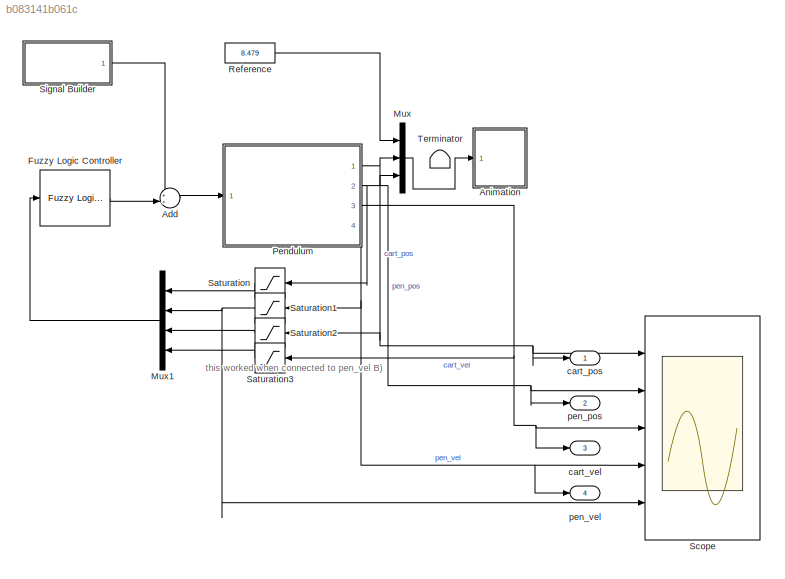
MODEL slx_b083141b061c
KIND model
CONFIG AbsTol = auto
CONFIG EnableMultiTasking = off
CONFIG FixedStep = auto
CONFIG MaxStep = auto
CONFIG MinStep = auto
CONFIG RelTol = 1e-3
CONFIG SampleTimeConstraint = Unconstrained
CONFIG SolverName = VariableStepAuto
CONFIG StartTime = 0.0
CONFIG StopTime = 20.0
BLOCK [Sum] Add
  Inputs = ++|
  Ports = [2, 1]
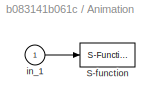
BLOCK [SubSystem] Animation
  Ports = [1]
  RequestExecContextInheritance = off
BLOCK [S-Function] Animation/S-function
  DeleteFcn = pendan([],[],[],'DeleteBlock');
  EnableBusSupport = off
  FunctionName = pendan
  Parameters = RefBlock
  Ports = [1]
  SFcnIsStateOwnerBlock = off
  SFunctionDeploymentMode = off
BLOCK [Inport] Animation/in_1
BLOCK [Reference] Fuzzy Logic Controller  REF=fuzblock/Fuzzy Logic   (lib defined in mdl_858b3b3e7478)
Controller
  Ports = [1, 1]
  SourceBlock = fuzblock/Fuzzy Logic \nController
  SourceProductBaseCode = FL
  SourceType = Fuzzy Inference System
BLOCK [Mux] Mux
  DisplayOption = bar
  Inputs = 3
  Ports = [3, 1]
BLOCK [Mux] Mux1
  DisplayOption = bar
  Ports = [4, 1]
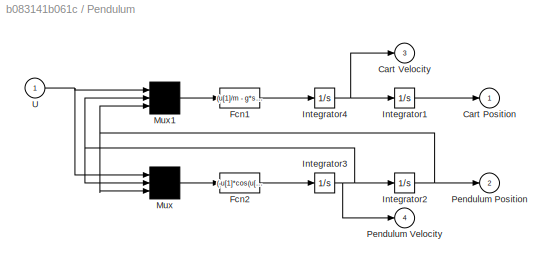
BLOCK [SubSystem] Pendulum
  Ports = [1, 4]
  RequestExecContextInheritance = off
BLOCK [Outport] Pendulum/Cart Position
  InitialOutput = 0
  VectorParamsAs1DForOutWhenUnconnected = off
BLOCK [Outport] Pendulum/Cart Velocity
  InitialOutput = 0
  Port = 3
  VectorParamsAs1DForOutWhenUnconnected = off
BLOCK [Fcn] Pendulum/Fcn1
  Expr = (u[1]/m - g*sin(u[3])*cos(u[3]) + l*power(u[2],2)*sin(u[3]))/(Mcart/m + power(sin(u[3]),2))
BLOCK [Fcn] Pendulum/Fcn2
  Expr = (-u[1]*cos(u[3])/m + (Mcart+m)*g*sin(u[3])/m - l*power(u[2],2)*sin(u[3])*cos(u[3]))/(l*(Mcart/m + power(sin(u[3]),2)))
BLOCK [Integrator] Pendulum/Integrator1
  Ports = [1, 1]
BLOCK [Integrator] Pendulum/Integrator2
  Ports = [1, 1]
BLOCK [Integrator] Pendulum/Integrator3
  Ports = [1, 1]
BLOCK [Integrator] Pendulum/Integrator4
  Ports = [1, 1]
BLOCK [Mux] Pendulum/Mux
  Inputs = 3
  Ports = [3, 1]
BLOCK [Mux] Pendulum/Mux1
  Inputs = 3
  Ports = [3, 1]
BLOCK [Outport] Pendulum/Pendulum Position
  InitialOutput = 0
  Port = 2
  VectorParamsAs1DForOutWhenUnconnected = off
BLOCK [Outport] Pendulum/Pendulum Velocity
  InitialOutput = 0
  Port = 4
  VectorParamsAs1DForOutWhenUnconnected = off
BLOCK [Inport] Pendulum/U
BLOCK [Constant] Reference
  Value = 8.479
BLOCK [Saturate] Saturation
  LowerLimit = -pi
  UpperLimit = pi
BLOCK [Saturate] Saturation1
  LowerLimit = -5
  UpperLimit = 5
BLOCK [Saturate] Saturation2
  LowerLimit = -10
  UpperLimit = 10
BLOCK [Saturate] Saturation3
  LowerLimit = -5
  UpperLimit = 5
BLOCK [Scope] Scope
  Floating = off
  NumInputPorts = 5
  Ports = [5]
  ScopeSpecificationString = Simulink.scopes.TimeScopeBlockCfg('CurrentConfiguration', extmgr.ConfigurationSet(extmgr.Configuration('Core','General UI',true),extmgr.Configuration('Core','Source UI',true),extmgr.Configuration('Sources','WiredSimulink',true,'DataLogging',true),extmgr.Configuration('Visuals','Time Domain',true,'SerializedDisplays',{struct('MinYLimReal','-3.83542','MaxYLimReal','5.40616','YLabelReal','','MinYLimM...<+3406ch>
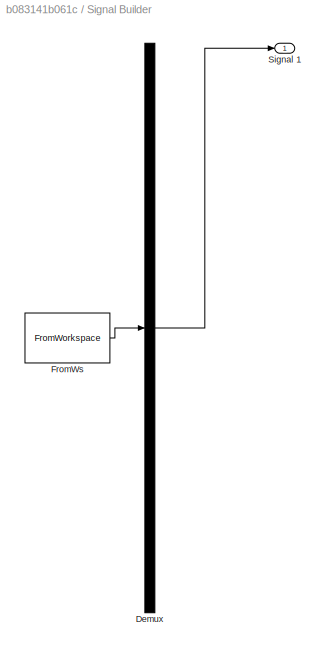
BLOCK [SubSystem] Signal Builder
  ClipboardFcn = sigbuilder_block('clipboard');
  CloseFcn = sigbuilder_block('close');
  ContinueFcn = sigbuilder_block('continue');
  CopyFcn = sigbuilder_block('copy');
  DeleteFcn = sigbuilder_block('delete');
  LoadFcn = sigbuilder_block('load');
  MaskHideContents = on
  ModelCloseFcn = sigbuilder_block('modelClose');
  NameChangeFcn = sigbuilder_block('namechange');
  OpenFcn = sigbuilder_block('open',[352.5 85 550.5 362.5 ]);
  PauseFcn = sigbuilder_block('pause');
  Ports = [0, 1]
  PreSaveFcn = sigbuilder_block('preSave');
  RequestExecContextInheritance = off
  StartFcn = sigbuilder_block('start');
  StopFcn = sigbuilder_block('stop');
  Tag = STV Subsys
BLOCK [Demux] Signal Builder/Demux
  DisplayOption = none
  Outputs = 1
  Ports = [1, 1]
  Tag = STV Demux
BLOCK [FromWorkspace] Signal Builder/FromWs
  Tag = STV FromWs
  VariableName = tuvar
BLOCK [Outport] Signal Builder/Signal 1
  Tag = STV Outport
BLOCK [Terminator] Terminator
BLOCK [Outport] cart_pos
  OutDataTypeStr = double
BLOCK [Outport] cart_vel
  OutDataTypeStr = double
  Port = 3
BLOCK [Outport] pen_pos
  OutDataTypeStr = double
  Port = 2
BLOCK [Outport] pen_vel
  OutDataTypeStr = double
  Port = 4
ANNOTATION (root): this worked when connected to pen_vel B)
LINE Add:1 -> Pendulum:1
LINE Animation/in_1:1 -> Animation/S-function:1
LINE Fuzzy Logic Controller:1 -> Add:2
LINE Mux1:1 -> Fuzzy Logic Controller:1
LINE Mux:1 -> Animation:1
LINE Pendulum/Fcn1:1 -> Pendulum/Integrator4:1
LINE Pendulum/Fcn2:1 -> Pendulum/Integrator3:1
LINE Pendulum/Integrator1:1 -> Pendulum/Cart Position:1
NET Pendulum/Integrator2:1 -> Pendulum/Mux1:3, Pendulum/Mux:3, Pendulum/Pendulum Position:1
NET Pendulum/Integrator3:1 -> Pendulum/Integrator2:1, Pendulum/Mux1:2, Pendulum/Mux:2, Pendulum/Pendulum Velocity:1
NET Pendulum/Integrator4:1 -> Pendulum/Cart Velocity:1, Pendulum/Integrator1:1
LINE Pendulum/Mux1:1 -> Pendulum/Fcn1:1
LINE Pendulum/Mux:1 -> Pendulum/Fcn2:1
NET Pendulum/U:1 -> Pendulum/Mux1:1, Pendulum/Mux:1
NET Pendulum:1 -> Mux:2, Saturation2:1, Scope:1, cart_pos:1
NET Pendulum:2 -> Mux:3, Saturation:1, Scope:2, pen_pos:1
NET Pendulum:3 -> Saturation3:1, Scope:3, cart_vel:1
NET Pendulum:4 -> Saturation1:1, Scope:4, pen_vel:1
LINE Reference:1 -> Mux:1
NET Saturation1:1 -> Mux1:2, Scope:5
LINE Saturation2:1 -> Mux1:3
LINE Saturation3:1 -> Mux1:4
LINE Saturation:1 -> Mux1:1
LINE Signal Builder:1 -> Add:1
note: NET lines group one-source signal fan-out (src -> all destinations, sorted); 1:1 wires keep LINE
